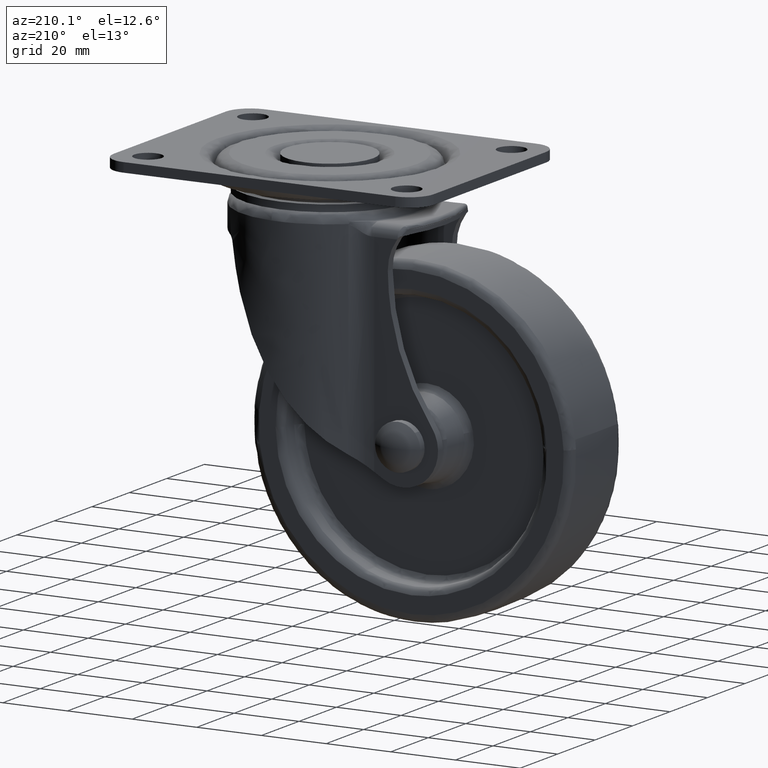
[diagram: clean part render]
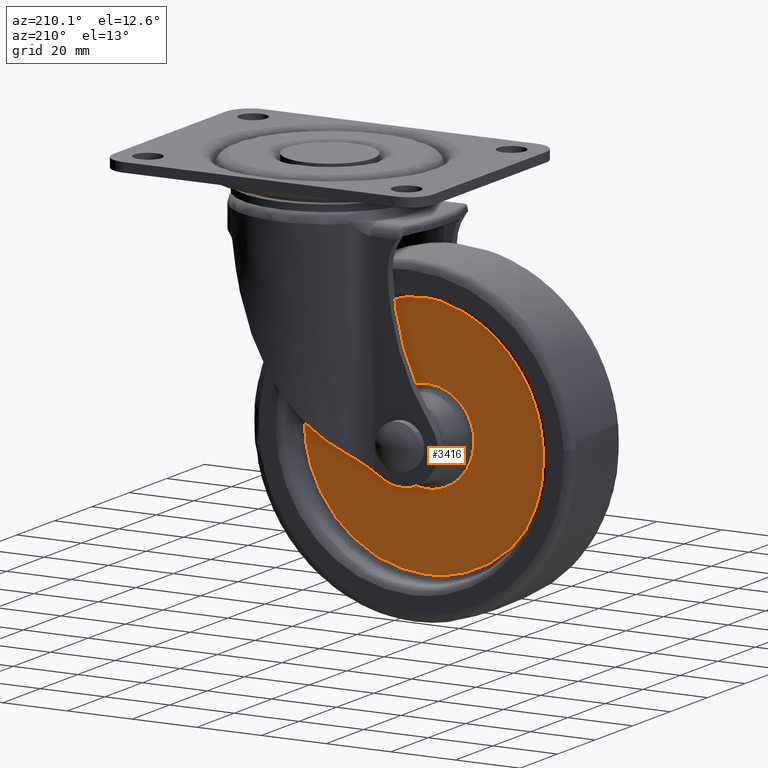
[diagram: same view with one face highlighted and labeled with its STEP entity id]
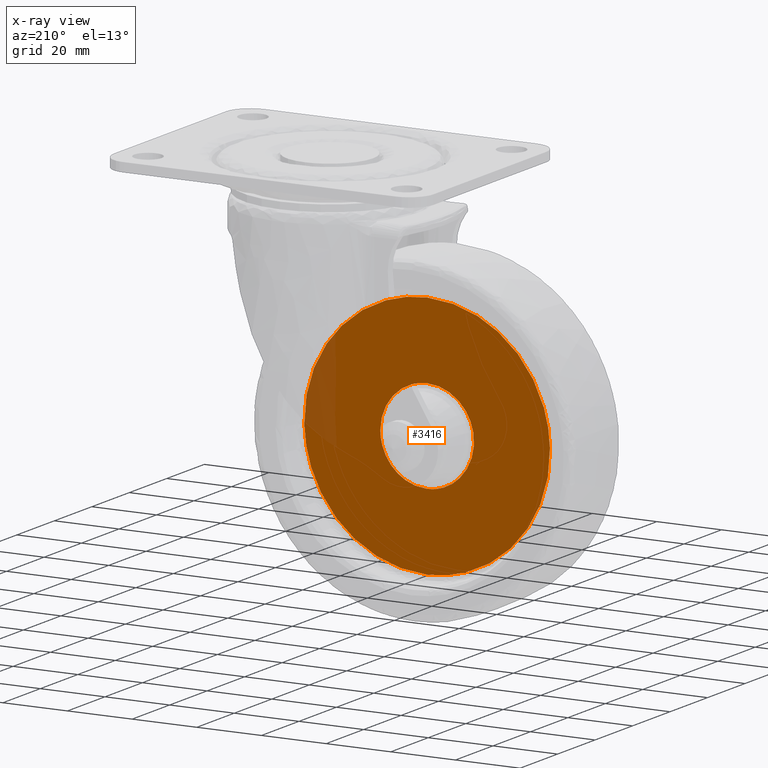
[diagram: x-ray of the same camera — body ghosted, the highlighted face saturated]
A machine part, auxiliary view. The second image highlights one B-rep face of the part: STEP entity #3416.
The next image is the same camera in x-ray: the body ghosted, the highlighted face saturated — about 5% of this face is hidden behind the body in this view.
In plain terms, the highlighted face is a freeform B-spline surface patch.
Its self-contained STEP definition (entity closure, byte-faithful):
#2517=CARTESIAN_POINT('',(-70.987586203987078,5.0,-72.044850372438376));
#2518=VERTEX_POINT('',#2517);
#2529=CARTESIAN_POINT('',(-32.999587000000091,5.0,-110.999793999999990));
#2530=VERTEX_POINT('',#2529);
#2531=CARTESIAN_POINT('',(-70.987586203987078,5.0,-72.044850372438376));
#2532=CARTESIAN_POINT('',(-71.049361324857657,4.999999999999992,-74.491986407238940));
#2533=CARTESIAN_POINT('',(-70.692007128712262,5.000000000000012,-79.477283139239887));
#2534=CARTESIAN_POINT('',(-68.906748630132967,5.0,-85.982230211752722));
#2535=CARTESIAN_POINT('',(-66.431754154090768,4.999999999999999,-91.290885158982277));
#2536=CARTESIAN_POINT('',(-63.286857059441097,5.000000000000064,-96.229345388965427));
#2537=CARTESIAN_POINT('',(-59.215621488546972,4.999999999999817,-100.786094916490800));
#2538=CARTESIAN_POINT('',(-54.412135603435011,5.000000000000257,-104.544037616604200));
#2539=CARTESIAN_POINT('',(-49.204947972097507,4.999999999999712,-107.551103127935800));
#2540=CARTESIAN_POINT('',(-42.238025889148197,5.000000000000082,-110.211105470394100));
#2541=CARTESIAN_POINT('',(-36.395196422063293,5.000000000000079,-111.000974689547110));
#2542=CARTESIAN_POINT('',(-32.999587000000091,5.0,-110.999793999999990));
#2543=B_SPLINE_CURVE_WITH_KNOTS('',3,(#2531,#2532,#2533,#2534,#2535,#2536,#2537,#2538,#2539,#2540,#2541,#2542),.UNSPECIFIED.,.F.,.U.,(4,1,1,1,1,1,1,1,1,4),(0.000000180645301,7.343721474907127,14.924454076484601,20.136207519177159,24.874133366560208,32.454710782009947,38.377122168502893,43.115072445272631,50.458904923594950,60.645402791963988),.UNSPECIFIED.);
#2544=EDGE_CURVE('',#2518,#2530,#2543,.T.);
#2546=CARTESIAN_POINT('',(4.988412203986909,5.0,-73.954737627561627));
#2547=VERTEX_POINT('',#2546);
#2548=CARTESIAN_POINT('',(-32.999587000000091,5.0,-110.999793999999990));
#2549=CARTESIAN_POINT('',(-31.393571157001880,4.999999999999997,-110.999834162921100));
#2550=CARTESIAN_POINT('',(-27.952064806239900,5.000000000000019,-110.781345106343000));
#2551=CARTESIAN_POINT('',(-23.141698474070871,4.999999999999967,-109.810038480823100));
#2552=CARTESIAN_POINT('',(-18.429559655888720,5.000000000000044,-108.200928514975400));
#2553=CARTESIAN_POINT('',(-13.604903475018491,4.999999999999976,-105.853657898274310));
#2554=CARTESIAN_POINT('',(-9.316459377500195,5.000000000000019,-102.876765852331200));
#2555=CARTESIAN_POINT('',(-5.209666871295146,4.999999999999996,-99.083940841357020));
#2556=CARTESIAN_POINT('',(-1.585045992980478,5.000000000000005,-94.713152980054076));
#2557=CARTESIAN_POINT('',(1.621367033413441,4.999999999999991,-89.115905370004285));
#2558=CARTESIAN_POINT('',(4.160600232787389,5.000000000000012,-82.119340546722924));
#2559=CARTESIAN_POINT('',(4.912364832527102,4.999999999999997,-77.013005081186520));
#2560=CARTESIAN_POINT('',(4.988412203986909,5.0,-73.954737627561627));
#2561=B_SPLINE_CURVE_WITH_KNOTS('',3,(#2548,#2549,#2550,#2551,#2552,#2553,#2554,#2555,#2556,#2557,#2558,#2559,#2560),.UNSPECIFIED.,.F.,.U.,(4,1,1,1,1,1,1,1,1,1,4),(0.000000164765225,4.818055691185265,10.324533042270231,14.683826947747979,19.731420641278291,26.385071050601130,30.285318352212570,36.480106426789490,43.363169880519273,49.557917233422401,58.735305470042327),.UNSPECIFIED.);
#2562=EDGE_CURVE('',#2530,#2547,#2561,.T.);
#2607=CARTESIAN_POINT('',(-32.999587000000091,5.0,-34.999794000000009));
#2608=VERTEX_POINT('',#2607);
#2609=CARTESIAN_POINT('',(4.988412203986909,5.0,-73.954737627561627));
#2610=CARTESIAN_POINT('',(5.068747401608650,4.999999999999992,-70.797054017260521));
#2611=CARTESIAN_POINT('',(4.584740125046404,5.000000000000018,-65.966967645005823));
#2612=CARTESIAN_POINT('',(2.730956870517687,4.999999999999990,-59.748323327521341));
#2613=CARTESIAN_POINT('',(0.533789852164245,5.000000000000004,-54.836115043505870));
#2614=CARTESIAN_POINT('',(-2.232523256070763,5.000000000000004,-50.492610129652313));
#2615=CARTESIAN_POINT('',(-5.970723467500756,4.999999999999966,-46.092626902405890));
#2616=CARTESIAN_POINT('',(-10.262323927434450,5.000000000000102,-42.328124848548732));
#2617=CARTESIAN_POINT('',(-15.186528740035090,4.999999999999846,-39.297678482886290));
#2618=CARTESIAN_POINT('',(-19.675568426726290,5.000000000000056,-37.322284287585873));
#2619=CARTESIAN_POINT('',(-25.419231849368121,5.000000000000041,-35.550009558658942));
#2620=CARTESIAN_POINT('',(-29.919860879885800,4.999999999999900,-34.999050001994192));
#2621=CARTESIAN_POINT('',(-32.999587000000091,5.0,-34.999794000000009));
#2622=B_SPLINE_CURVE_WITH_KNOTS('',3,(#2609,#2610,#2611,#2612,#2613,#2614,#2615,#2616,#2617,#2618,#2619,#2620,#2621),.UNSPECIFIED.,.F.,.U.,(4,1,1,1,1,1,1,1,1,1,4),(0.000000180795631,9.475800676885257,14.450660018379130,19.425493141394728,25.584858981727670,29.848966608336141,36.718832529130310,42.641278860069193,47.142330025171177,51.406471214275193,60.645402791963441),.UNSPECIFIED.);
#2623=EDGE_CURVE('',#2547,#2608,#2622,.T.);
#2625=CARTESIAN_POINT('',(-32.999587000000091,5.0,-34.999794000000009));
#2626=CARTESIAN_POINT('',(-35.599871965912179,5.000000000000004,-34.999373357392173));
#2627=CARTESIAN_POINT('',(-39.729479489706627,5.000000000000005,-35.425486424523847));
#2628=CARTESIAN_POINT('',(-45.791800302198460,4.999999999999981,-37.074913520273931));
#2629=CARTESIAN_POINT('',(-50.366070056530312,5.000000000000040,-39.066089762381743));
#2630=CARTESIAN_POINT('',(-54.618867830422957,4.999999999999995,-41.652759345321087));
#2631=CARTESIAN_POINT('',(-58.073961158684433,4.999999999999984,-44.323819792099322));
#2632=CARTESIAN_POINT('',(-61.563869861543502,5.000000000000022,-47.768375342692202));
#2633=CARTESIAN_POINT('',(-64.475255802921680,4.999999999999994,-51.526719426478543));
#2634=CARTESIAN_POINT('',(-67.313033710455613,5.000000000000003,-56.344246442846220));
#2635=CARTESIAN_POINT('',(-69.991990421834331,5.000000000000003,-62.966586173133948));
#2636=CARTESIAN_POINT('',(-70.904168226525400,4.999999999999999,-68.680736696136151));
#2637=CARTESIAN_POINT('',(-70.987586203987078,5.0,-72.044850372438376));
#2638=B_SPLINE_CURVE_WITH_KNOTS('',3,(#2625,#2626,#2627,#2628,#2629,#2630,#2631,#2632,#2633,#2634,#2635,#2636,#2637),.UNSPECIFIED.,.F.,.U.,(4,1,1,1,1,1,1,1,1,1,4),(0.000000164677886,7.800731756889213,12.389463397588850,18.813684491630649,22.714071001474029,27.302758090571370,31.891394046661521,37.397827065178262,41.527692144005712,48.640196537630487,58.735305470042277),.UNSPECIFIED.);
#2639=EDGE_CURVE('',#2608,#2518,#2638,.T.);
#2680=CARTESIAN_POINT('',(-38.155739441118911,5.0,-86.536613447962893));
#2681=VERTEX_POINT('',#2680);
#2682=CARTESIAN_POINT('',(-32.999587000000091,5.0,-87.485351938185033));
#2683=VERTEX_POINT('',#2682);
#2684=CARTESIAN_POINT('',(-38.155739441118911,5.0,-86.536613447962893));
#2685=CARTESIAN_POINT('',(-36.513809724862512,5.000000000000003,-87.163199384892295));
#2686=CARTESIAN_POINT('',(-34.756922286780132,4.999999999999980,-87.485950830962906));
#2687=CARTESIAN_POINT('',(-32.999587000000091,5.0,-87.485351938185033));
#2688=B_SPLINE_CURVE_WITH_KNOTS('',3,(#2684,#2685,#2686,#2687),.UNSPECIFIED.,.F.,.U.,(4,4),(0.000000017420379,5.271783413834821),.UNSPECIFIED.);
#2689=EDGE_CURVE('',#2681,#2683,#2688,.T.);
#2707=CARTESIAN_POINT('',(-47.228565879485323,5.0,-70.285471111069910));
#2708=VERTEX_POINT('',#2707);
#2719=CARTESIAN_POINT('',(-32.999587000000091,5.0,-58.514236061814991));
#2720=VERTEX_POINT('',#2719);
#2721=CARTESIAN_POINT('',(-32.999587000000091,5.0,-58.514236061814991));
#2722=CARTESIAN_POINT('',(-34.042481626580191,4.999999999999990,-58.514066313830291));
#2723=CARTESIAN_POINT('',(-36.076055799853513,5.000000000000016,-58.734776069673423));
#2724=CARTESIAN_POINT('',(-38.664670903198697,5.000000000000002,-59.588580590156482));
#2725=CARTESIAN_POINT('',(-41.291942473802202,5.000000000000007,-60.994213408569813));
#2726=CARTESIAN_POINT('',(-43.552212402958183,4.999999999999999,-62.884714667130261));
#2727=CARTESIAN_POINT('',(-45.246147480497427,5.000000000000006,-65.150742914362326));
#2728=CARTESIAN_POINT('',(-46.489265370998517,4.999999999999992,-67.506993143008813));
#2729=CARTESIAN_POINT('',(-47.013878767683579,5.000000000000003,-69.158536757347832));
#2730=CARTESIAN_POINT('',(-47.228565879485323,5.0,-70.285471111069910));
#2731=B_SPLINE_CURVE_WITH_KNOTS('',3,(#2721,#2722,#2723,#2724,#2725,#2726,#2727,#2728,#2729,#2730),.UNSPECIFIED.,.F.,.U.,(4,1,1,1,1,1,1,4),(0.000000223630938,3.128663236445046,6.100929749874732,8.134605333037689,12.045382663743030,14.861186159537750,16.581988186038188,20.023495150500040),.UNSPECIFIED.);
#2732=EDGE_CURVE('',#2720,#2708,#2731,.T.);
#2734=CARTESIAN_POINT('',(-18.514029061815140,5.0,-72.999792677657169));
#2735=VERTEX_POINT('',#2734);
#2736=CARTESIAN_POINT('',(-18.514029061815140,5.0,-72.999792677657169));
#2737=CARTESIAN_POINT('',(-18.512966016474870,4.999999999999994,-71.399724658533287));
#2738=CARTESIAN_POINT('',(-18.900992390470950,5.000000000000004,-69.089591509997632));
#2739=CARTESIAN_POINT('',(-20.282187305012140,4.999999999999998,-65.867427428174395));
#2740=CARTESIAN_POINT('',(-21.869597112137640,5.000000000000002,-63.553684187795909));
#2741=CARTESIAN_POINT('',(-23.907142591638980,5.000000000000001,-61.637804765749813));
#2742=CARTESIAN_POINT('',(-26.130208247649541,5.0,-60.152321867952047));
#2743=CARTESIAN_POINT('',(-29.089025120614949,5.000000000000001,-58.883728547575913));
#2744=CARTESIAN_POINT('',(-31.577430631589969,5.000000000000002,-58.513627553748272));
#2745=CARTESIAN_POINT('',(-32.999587000000091,5.0,-58.514236061814991));
#2746=B_SPLINE_CURVE_WITH_KNOTS('',3,(#2736,#2737,#2738,#2739,#2740,#2741,#2742,#2743,#2744,#2745),.UNSPECIFIED.,.F.,.U.,(4,1,1,1,1,1,1,4),(0.000000296340982,4.799655087230676,6.932882356482793,10.488266975741929,13.154650878107830,15.287822600090150,18.487656796851660,22.754003226412710),.UNSPECIFIED.);
#2747=EDGE_CURVE('',#2735,#2720,#2746,.T.);
#2749=CARTESIAN_POINT('',(-32.999587000000091,5.0,-87.485351938185033));
#2750=CARTESIAN_POINT('',(-32.051502294416551,5.000000000000010,-87.485470633112925));
#2751=CARTESIAN_POINT('',(-30.214662119865672,4.999999999999983,-87.304335848787801));
#2752=CARTESIAN_POINT('',(-27.305038755537002,5.000000000000007,-86.441482168475531));
#2753=CARTESIAN_POINT('',(-24.637612404189479,5.000000000000004,-84.973314938446805));
#2754=CARTESIAN_POINT('',(-22.318250474480390,4.999999999999987,-82.922257813894632));
#2755=CARTESIAN_POINT('',(-20.840164266823169,5.000000000000013,-80.979445625084523));
#2756=CARTESIAN_POINT('',(-19.708320441797781,4.999999999999934,-78.892799880743468));
#2757=CARTESIAN_POINT('',(-18.790664872207181,5.000000000000132,-76.377156796671301));
#2758=CARTESIAN_POINT('',(-18.513649312248749,4.999999999999830,-74.244167399083125));
#2759=CARTESIAN_POINT('',(-18.514029061815140,5.0,-72.999792677657169));
#2760=B_SPLINE_CURVE_WITH_KNOTS('',3,(#2749,#2750,#2751,#2752,#2753,#2754,#2755,#2756,#2757,#2758,#2759),.UNSPECIFIED.,.F.,.U.,(4,1,1,1,1,1,1,1,4),(0.000000295868745,2.844247596151146,5.510734297190691,9.066069277818542,11.910260848846590,14.754525030892440,16.354429523877041,19.020966108385640,22.754004717010719),.UNSPECIFIED.);
#2761=EDGE_CURVE('',#2683,#2735,#2760,.T.);
#2783=CARTESIAN_POINT('',(-47.228565879485323,5.0,-70.285471111069910));
#2784=CARTESIAN_POINT('',(-47.525490820101240,4.999999999999999,-71.836554230980298));
#2785=CARTESIAN_POINT('',(-47.591609120814283,4.999999999999998,-74.556098524409407));
#2786=CARTESIAN_POINT('',(-46.610319755572377,5.0,-78.352092455118978));
#2787=CARTESIAN_POINT('',(-45.079105871402447,5.0,-81.203057976945260));
#2788=CARTESIAN_POINT('',(-43.043938077884853,5.000000000000003,-83.566551856831794));
#2789=CARTESIAN_POINT('',(-40.792903485518451,4.999999999999983,-85.326996078179803));
#2790=CARTESIAN_POINT('',(-39.041181475154410,5.000000000000048,-86.199441890836781));
#2791=CARTESIAN_POINT('',(-38.155739441118911,5.0,-86.536613447962893));
#2792=B_SPLINE_CURVE_WITH_KNOTS('',3,(#2783,#2784,#2785,#2786,#2787,#2788,#2789,#2790,#2791),.UNSPECIFIED.,.F.,.U.,(4,1,1,1,1,1,4),(0.000000234209150,4.737340722724420,8.053489989188805,11.685411516710220,14.369928643839520,17.370269930286021,20.212669619238248),.UNSPECIFIED.);
#2793=EDGE_CURVE('',#2708,#2681,#2792,.T.);
#3398=CARTESIAN_POINT('',(-74.782587890417474,5.0,-114.795993852697290));
#3399=CARTESIAN_POINT('',(-74.782587890417474,5.0,-31.203592108823909));
#3400=CARTESIAN_POINT('',(8.783415248974025,5.0,-114.795993852697290));
#3401=CARTESIAN_POINT('',(8.783415248974025,5.0,-31.203592108823909));
#3402=B_SPLINE_SURFACE_WITH_KNOTS('',1,1,((#3398,#3400),(#3399,#3401)),.UNSPECIFIED.,.F.,.F.,.U.,(2,2),(2,2),(0.0,83.592401743873353),(0.0,83.566003139391498),.UNSPECIFIED.);
#3403=ORIENTED_EDGE('',*,*,#2544,.F.);
#3404=ORIENTED_EDGE('',*,*,#2639,.F.);
#3405=ORIENTED_EDGE('',*,*,#2623,.F.);
#3406=ORIENTED_EDGE('',*,*,#2562,.F.);
#3407=EDGE_LOOP('',(#3403,#3404,#3405,#3406));
#3408=FACE_OUTER_BOUND('',#3407,.T.);
#3409=ORIENTED_EDGE('',*,*,#2732,.T.);
#3410=ORIENTED_EDGE('',*,*,#2793,.T.);
#3411=ORIENTED_EDGE('',*,*,#2689,.T.);
#3412=ORIENTED_EDGE('',*,*,#2761,.T.);
#3413=ORIENTED_EDGE('',*,*,#2747,.T.);
#3414=EDGE_LOOP('',(#3409,#3410,#3411,#3412,#3413));
#3415=FACE_BOUND('',#3414,.T.);
#3416=ADVANCED_FACE('',(#3408,#3415),#3402,.T.);